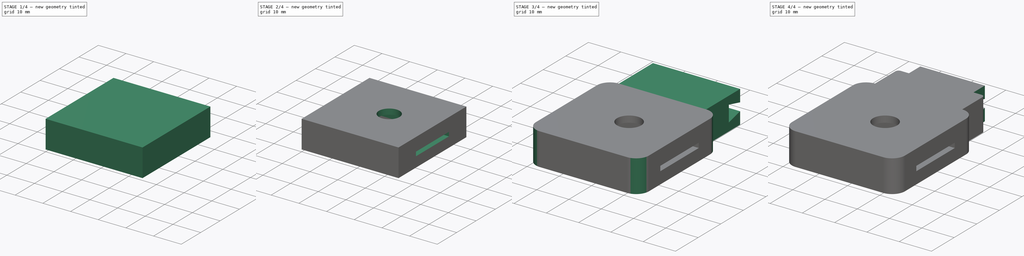
[diagram: build sequence overview — one tinted view per stage of 4, left to right]
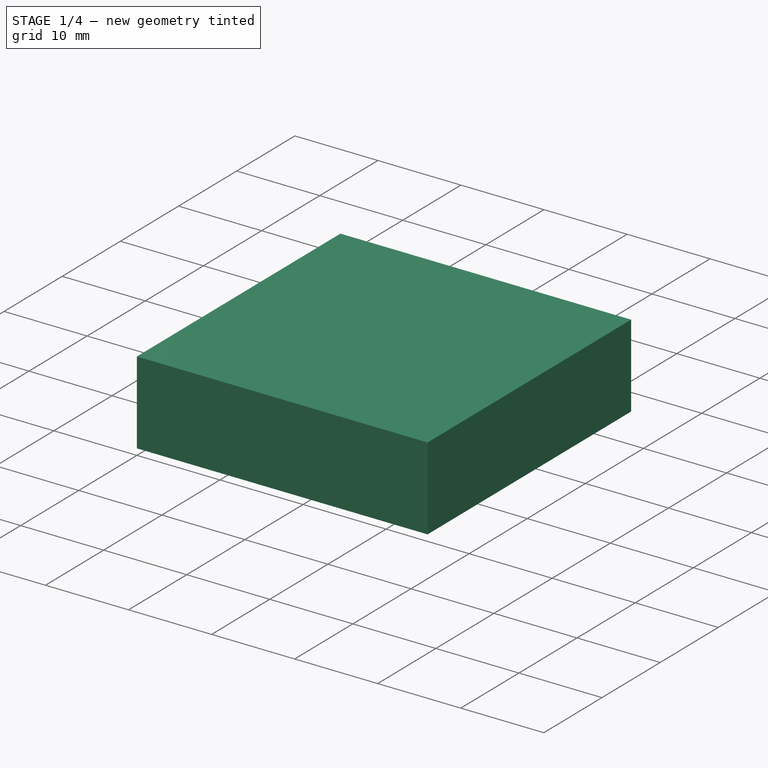
[diagram: stage 1 of 4 — iso view after this stage's code; geometry added in this stage tinted green]
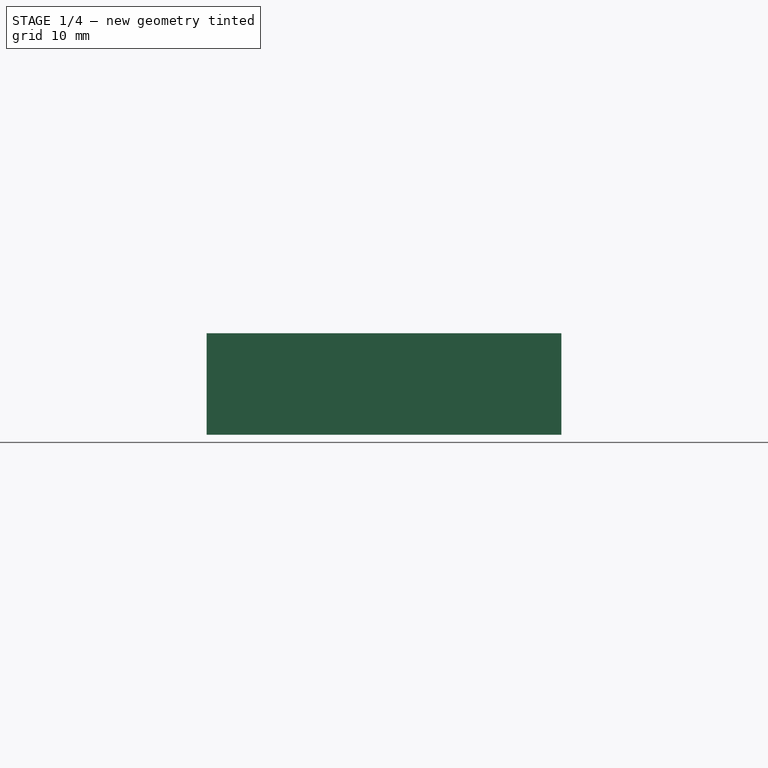
[diagram: stage 1 of 4 — front view after this stage's code; geometry added in this stage tinted green]
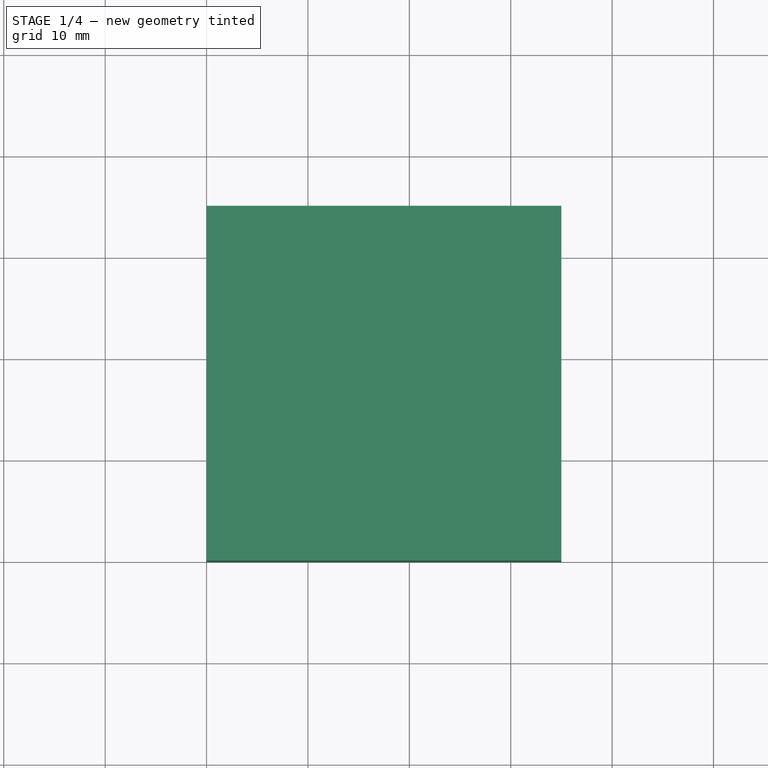
[diagram: stage 1 of 4 — top view after this stage's code; geometry added in this stage tinted green]
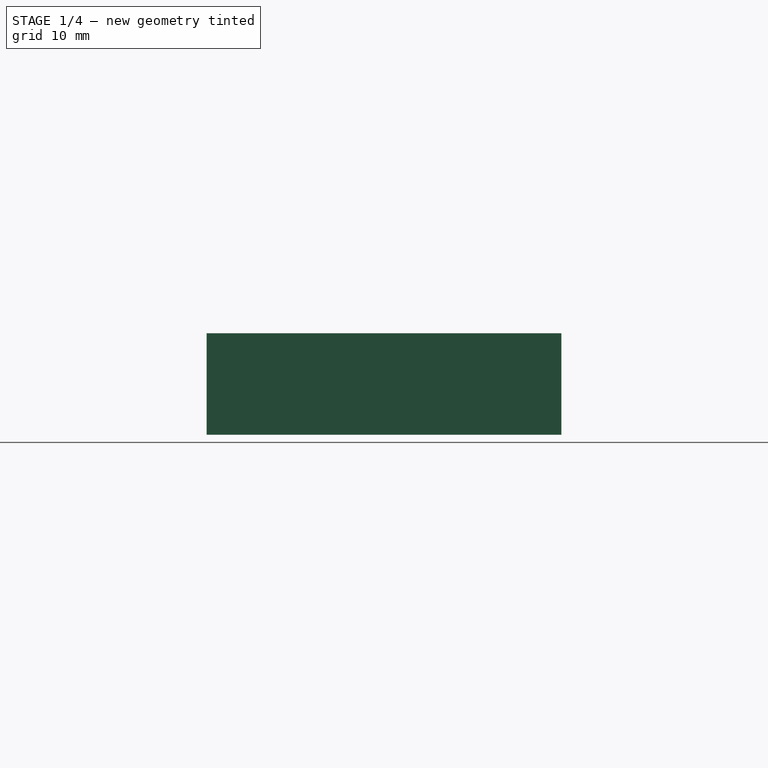
[diagram: stage 1 of 4 — right view after this stage's code; geometry added in this stage tinted green]
FCSTD DOCUMENT  (FreeCAD 0.17R13541 (Git))
Label: RPiCamera_A
License: Other
LicenseURL: https://www.gnu.org/licenses/gpl-2.0.html
objects: Sketcher::SketchObject×7, PartDesign::Pocket×6, PartDesign::Pad×3, PartDesign::Fillet×2, Part::Box×1, PartDesign::FeatureBase×1, PartDesign::Body×1
note: 30 computed .brp shape members not serialized (recipe doc carries the construction recipe); baked Part::Feature solids carry a one-line shape summary decoded from their .brp

FEATURE [Part::Box] Box  label="Cube"
  AttacherType = Attacher::AttachEngine3D
  Height = 10
  Length = 35
  Width = 35
FEATURE [PartDesign::FeatureBase] BaseFeature
  BaseFeature = -> Box
FEATURE [Sketcher::SketchObject] Sketch
  ExternalGeometry = -> [BaseFeature]
  MapMode = 5
  Placement = pos=(0,0,0) rot=(1,0,0;3.14159rad)
  Support = -> [BaseFeature]
  sketch-geometry (8):
    g0: LineSegment StartX=5.25 StartY=-4.75 StartZ=0 EndX=29.75 EndY=-4.75 EndZ=0
    g1: LineSegment StartX=29.75 StartY=-4.75 StartZ=0 EndX=29.75 EndY=-30.25 EndZ=0
    g2: LineSegment StartX=29.75 StartY=-30.25 StartZ=0 EndX=5.25 EndY=-30.25 EndZ=0
    g3: LineSegment StartX=5.25 StartY=-30.25 StartZ=0 EndX=5.25 EndY=-4.75 EndZ=0
    g4: GeomPoint X=17.5 Y=-4.75 Z=0
    g5: GeomPoint X=5.25 Y=-17.5 Z=0
    g6: GeomPoint X=17.5 Y=0 Z=0
    g7: GeomPoint X=0 Y=-17.5 Z=0
  constraints (20):
    c: Coincident(g0,g1)
    c: Coincident(g1,g2)
    c: Coincident(g2,g3)
    c: Coincident(g3,g0)
    c: Horizontal(g0)
    c: Horizontal(g2)
    c: Vertical(g1)
    c: Vertical(g3)
    c: DistanceY(g1,g1) = 25.5
    c: DistanceX(g0,g0) = 24.5
    c: PointOnObject(g4,g0)
    c: PointOnObject(g5,g3)
    c: Symmetric(g0,g0,g4)
    c: Symmetric(g0,g2,g5)
    c: PointOnObject(g6,g-3)
    c: PointOnObject(g7,g-6)
    c: Symmetric(g-1,g-6,g7)
    c: Symmetric(g-1,g-4,g6)
    c: Vertical(g6,g4)
    c: Horizontal(g7,g5)
FEATURE [PartDesign::Pocket] Pocket
  BaseFeature = -> BaseFeature
  Length = 8
  Length2 = 100
  Profile = -> Sketch
  Type = 0
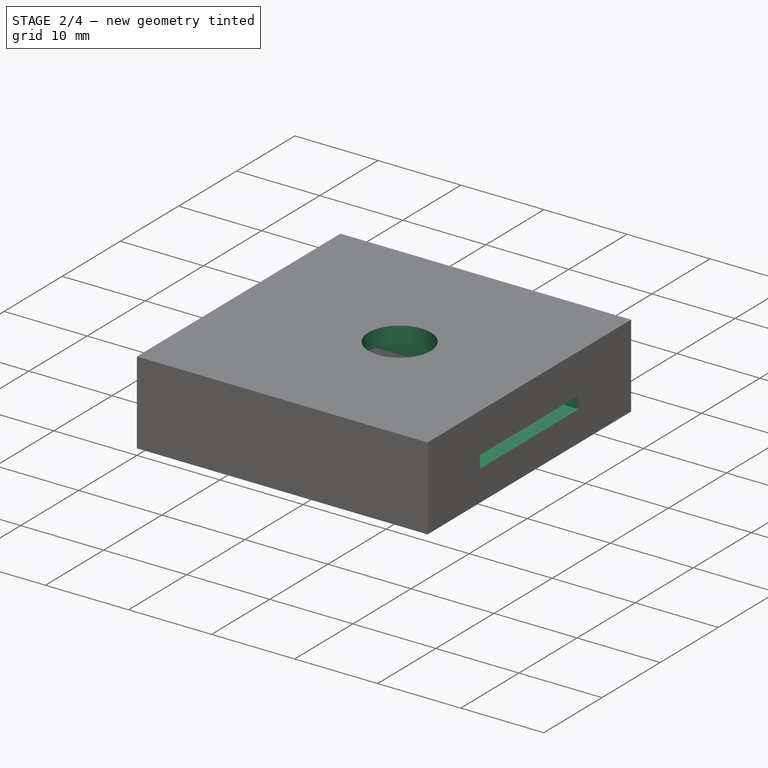
[diagram: stage 2 of 4 — iso view after this stage's code; geometry added in this stage tinted green]
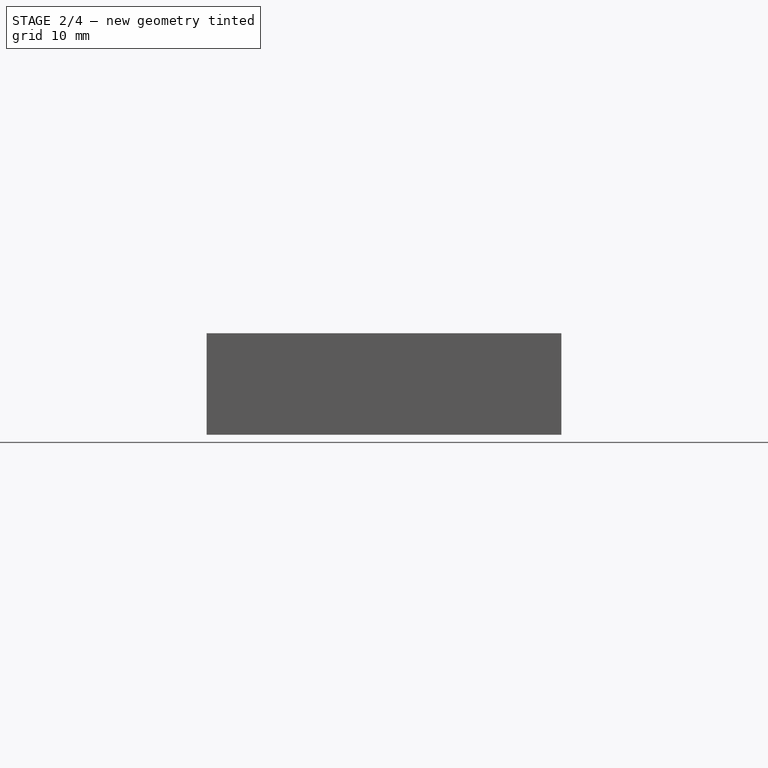
[diagram: stage 2 of 4 — front view after this stage's code; geometry added in this stage tinted green]
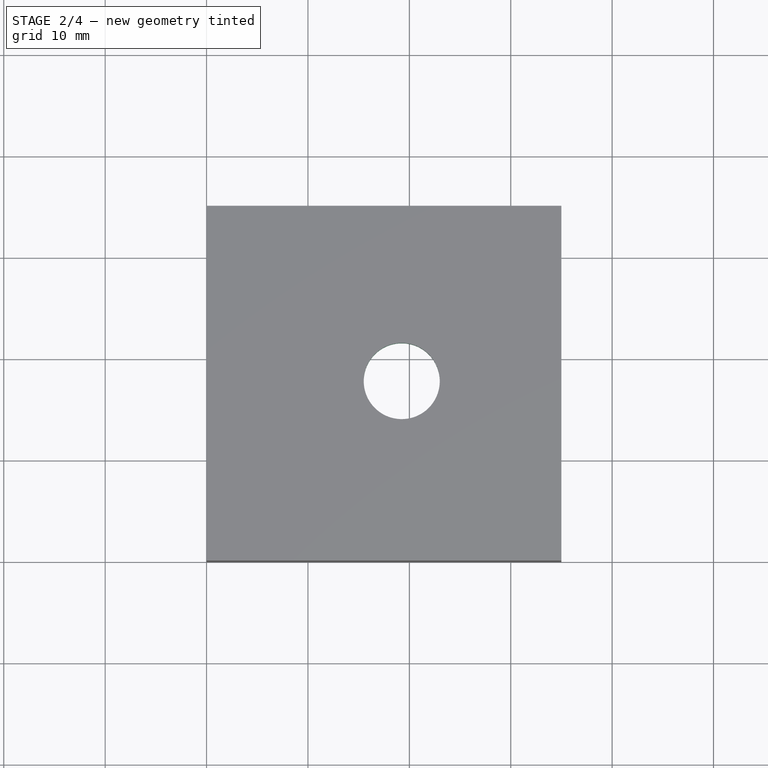
[diagram: stage 2 of 4 — top view after this stage's code; geometry added in this stage tinted green]
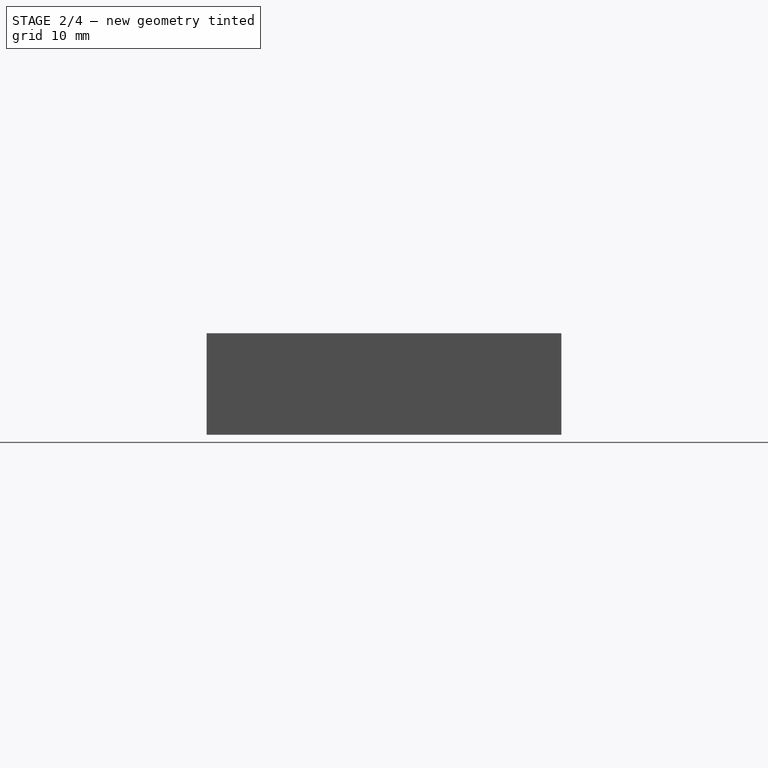
[diagram: stage 2 of 4 — right view after this stage's code; geometry added in this stage tinted green]
FEATURE [Sketcher::SketchObject] Sketch001  label="LensHole"
  ExternalGeometry = -> [Pocket]
  MapMode = 5
  Placement = pos=(0,0,10) rot=(0,0,1;0rad)
  Support = -> [Pocket]
  sketch-geometry (2):
    g0: Circle CenterX=19.25 CenterY=17.7 CenterZ=0 NormalX=0 NormalY=0 NormalZ=1 AngleXU=0 Radius=3.75
    g1: GeomPoint X=0 Y=17.7 Z=0
  constraints (5):
    c: Radius(g0) = 3.75
    c: PointOnObject(g1,g-3)
    c: Horizontal(g1,g0)
    c: DistanceX(g1,g0) = 19.25
    c: DistanceY(g-1,g1) = 17.7
FEATURE [PartDesign::Pocket] Pocket001
  BaseFeature = -> Pocket
  Length = 2
  Length2 = 100
  Profile = -> Sketch001
  Type = 0
FEATURE [Sketcher::SketchObject] Sketch002  label="Center"
  ExternalGeometry = -> [Pocket001]
  MapMode = 5
  Placement = pos=(0,0,8) rot=(1,0,0;3.14159rad)
  Support = -> [Pocket001]
  sketch-geometry (8):
    g0: LineSegment StartX=12.75 StartY=-30.25 StartZ=0 EndX=29.75 EndY=-30.25 EndZ=0
    g1: LineSegment StartX=29.75 StartY=-30.25 StartZ=0 EndX=29.75 EndY=-4.75 EndZ=0
    g2: LineSegment StartX=29.75 StartY=-4.75 StartZ=0 EndX=5.25 EndY=-4.75 EndZ=0
    g3: LineSegment StartX=12.75 StartY=-22.25 StartZ=0 EndX=23.75 EndY=-22.25 EndZ=0
    g4: LineSegment StartX=23.75 StartY=-22.25 StartZ=0 EndX=23.75 EndY=-12.75 EndZ=0
    g5: LineSegment StartX=23.75 StartY=-12.75 StartZ=0 EndX=5.25 EndY=-12.75 EndZ=0
    g6: LineSegment StartX=5.25 StartY=-12.75 StartZ=0 EndX=5.25 EndY=-4.75 EndZ=0
    g7: LineSegment StartX=12.75 StartY=-30.25 StartZ=0 EndX=12.75 EndY=-22.25 EndZ=0
  constraints (23):
    c: Coincident(g0,g1)
    c: Coincident(g1,g2)
    c: Horizontal(g0)
    c: Horizontal(g2)
    c: Vertical(g1)
    c: Coincident(g1,g-6)
    c: Coincident(g3,g4)
    c: Coincident(g4,g5)
    c: Horizontal(g3)
    c: Horizontal(g5)
    c: Vertical(g4)
    c: DistanceX(g5,g5) = 18.5
    c: DistanceY(g4,g4) = 9.5
    c: Coincident(g6,g5)
    c: Coincident(g6,g2)
    c: Coincident(g7,g0)
    c: Coincident(g7,g3)
    c: DistanceY(g6,g6) = 8
    c: Vertical(g6)
    c: Vertical(g7)
    c: PointOnObject(g0,g-4)
    c: PointOnObject(g5,g-3)
    c: DistanceX(g0,g0) = 17
FEATURE [PartDesign::Pad] Pad
  BaseFeature = -> Pocket001
  Length = 2
  Length2 = 100
  Profile = -> Sketch002
  Type = 0
FEATURE [Sketcher::SketchObject] Sketch003  label="CableHole"
  ExternalGeometry = -> [Pad]
  MapMode = 5
  Placement = pos=(29.75,0,0) rot=(0.57735,-0.57735,-0.57735;2.0944rad)
  Support = -> [Pad]
  sketch-geometry (6):
    g0: GeomPoint X=-17.5 Y=6 Z=0
    g1: LineSegment StartX=-26 StartY=5.2 StartZ=0 EndX=-9 EndY=5.2 EndZ=0
    g2: LineSegment StartX=-9 StartY=5.2 StartZ=0 EndX=-9 EndY=3.7 EndZ=0
    g3: LineSegment StartX=-9 StartY=3.7 StartZ=0 EndX=-26 EndY=3.7 EndZ=0
    g4: LineSegment StartX=-26 StartY=3.7 StartZ=0 EndX=-26 EndY=5.2 EndZ=0
    g5: GeomPoint X=-17.5 Y=5.2 Z=0
  constraints (16):
    c: PointOnObject(g0,g-3)
    c: Symmetric(g-5,g-6,g0)
    c: Coincident(g1,g2)
    c: Coincident(g2,g3)
    c: Coincident(g3,g4)
    c: Coincident(g4,g1)
    c: Horizontal(g1)
    c: Horizontal(g3)
    c: Vertical(g2)
    c: Vertical(g4)
    c: PointOnObject(g5,g1)
    c: Symmetric(g1,g1,g5)
    c: DistanceX(g3,g3) = 17
    c: DistanceY(g5,g0) = 0.8
    c: DistanceY(g4,g4) = 1.5
    c: Vertical(g5,g0)
FEATURE [PartDesign::Pocket] Pocket002
  BaseFeature = -> Pad
  Length = 5
  Length2 = 100
  Profile = -> Sketch003
  Type = 1
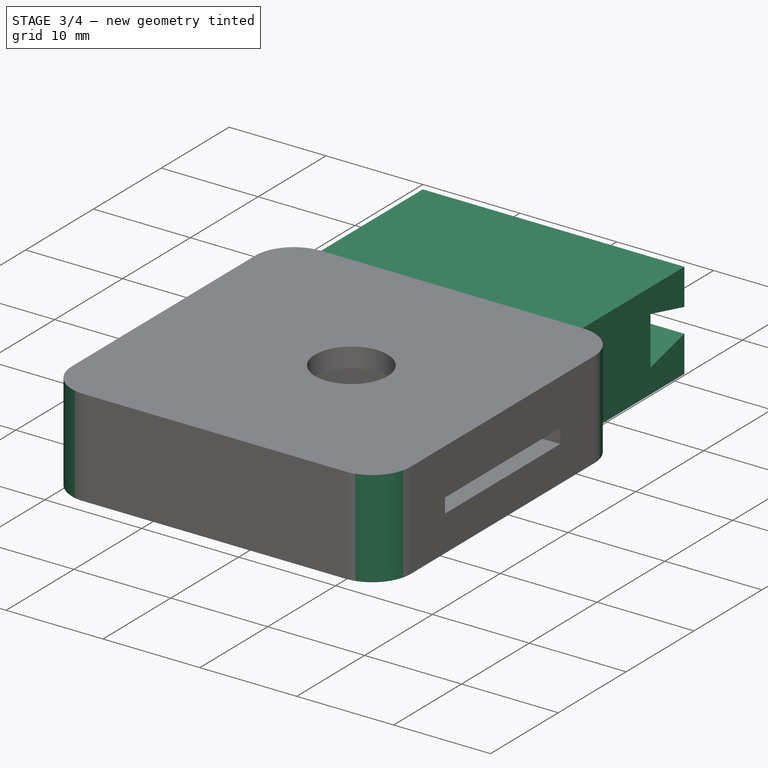
[diagram: stage 3 of 4 — iso view after this stage's code; geometry added in this stage tinted green]
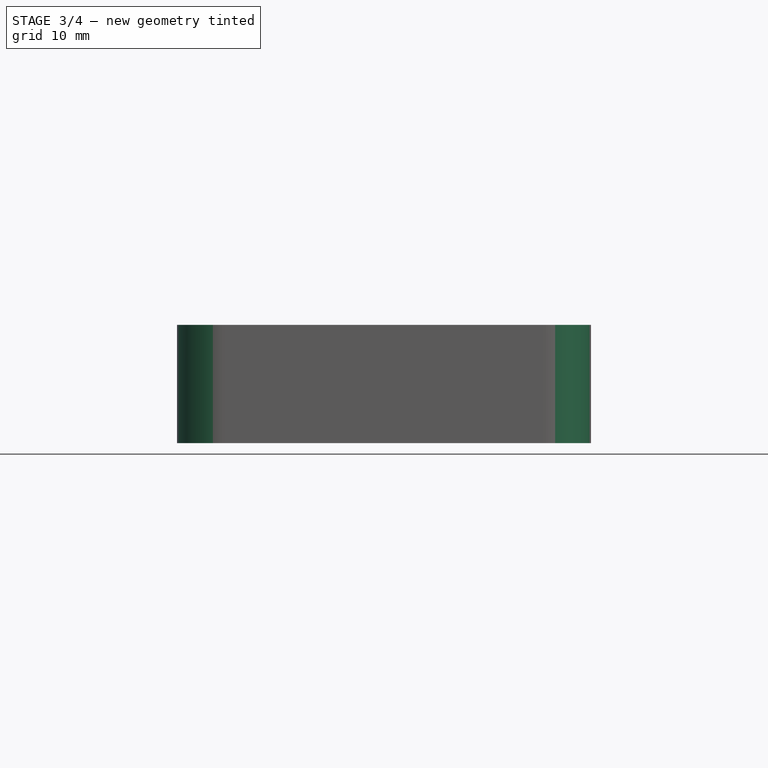
[diagram: stage 3 of 4 — front view after this stage's code; geometry added in this stage tinted green]
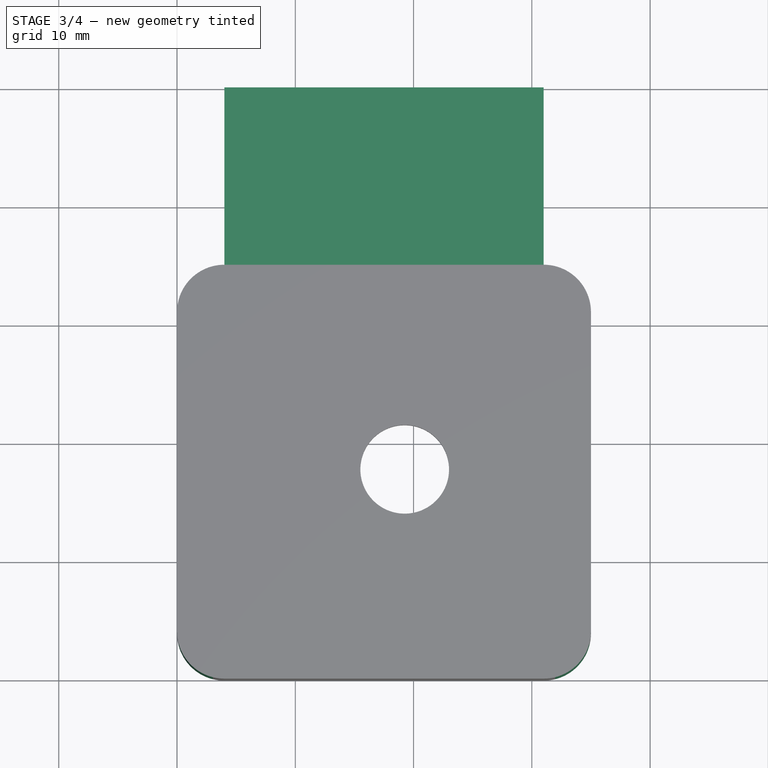
[diagram: stage 3 of 4 — top view after this stage's code; geometry added in this stage tinted green]
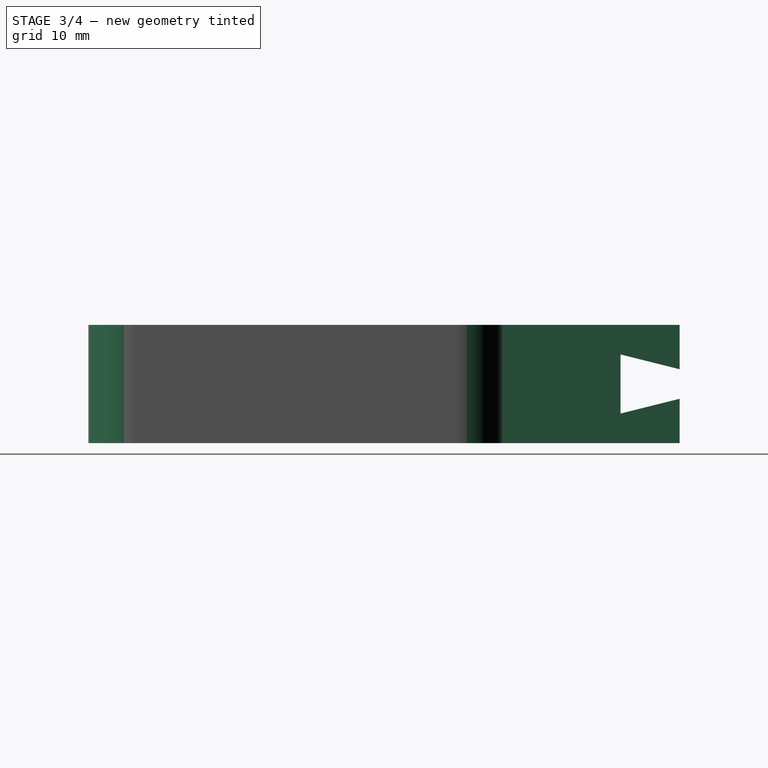
[diagram: stage 3 of 4 — right view after this stage's code; geometry added in this stage tinted green]
FEATURE [PartDesign::Fillet] Fillet
  Base = -> Pocket002 [Edge1,Edge6,Edge3,Edge12]
  BaseFeature = -> Pocket002
  Radius = 4
FEATURE [PartDesign::Pad] Pad001
  BaseFeature = -> Fillet
  Length = 10
  Length2 = 100
  Profile = -> Fillet [Face7]
  Type = 0
FEATURE [PartDesign::Pad] Pad002
  BaseFeature = -> Pad001
  Length = 5
  Length2 = 100
  Profile = -> Pad001 [Face19]
  Type = 0
FEATURE [Sketcher::SketchObject] Sketch004
  ExternalGeometry = -> [Pad002]
  MapMode = 5
  Placement = pos=(31,0,0) rot=(0.57735,0.57735,0.57735;2.0944rad)
  Support = -> [Pad002]
  sketch-geometry (6):
    g0: GeomPoint X=45 Y=5 Z=0
    g1: GeomPoint X=50 Y=5 Z=0
    g2: LineSegment StartX=45 StartY=2.5 StartZ=0 EndX=45 EndY=7.5 EndZ=0
    g3: LineSegment StartX=45 StartY=7.5 StartZ=0 EndX=50 EndY=6.25 EndZ=0
    g4: LineSegment StartX=50 StartY=6.25 StartZ=0 EndX=50 EndY=3.75 EndZ=0
    g5: LineSegment StartX=50 StartY=3.75 StartZ=0 EndX=45 EndY=2.5 EndZ=0
  constraints (13):
    c: PointOnObject(g1,g-4)
    c: Symmetric(g-6,g-6,g0)
    c: Symmetric(g-4,g-5,g1)
    c: Vertical(g2)
    c: Coincident(g2,g3)
    c: Coincident(g3,g4)
    c: Coincident(g4,g5)
    c: Coincident(g5,g2)
    c: DistanceY(g2,g2) = 5
    c: Vertical(g4)
    c: DistanceY(g4,g4) = 2.5
    c: Symmetric(g3,g4,g1)
    c: Symmetric(g2,g2,g0)
FEATURE [PartDesign::Pocket] Pocket003
  BaseFeature = -> Pad002
  Length = 5
  Length2 = 100
  Profile = -> Sketch004
  Type = 1
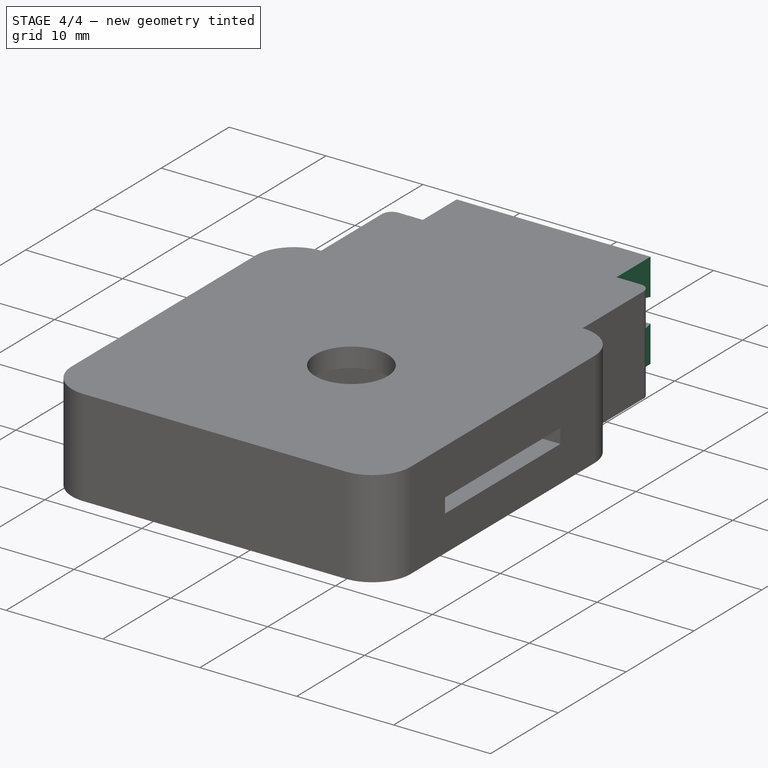
[diagram: stage 4 of 4 — iso view after this stage's code; geometry added in this stage tinted green]
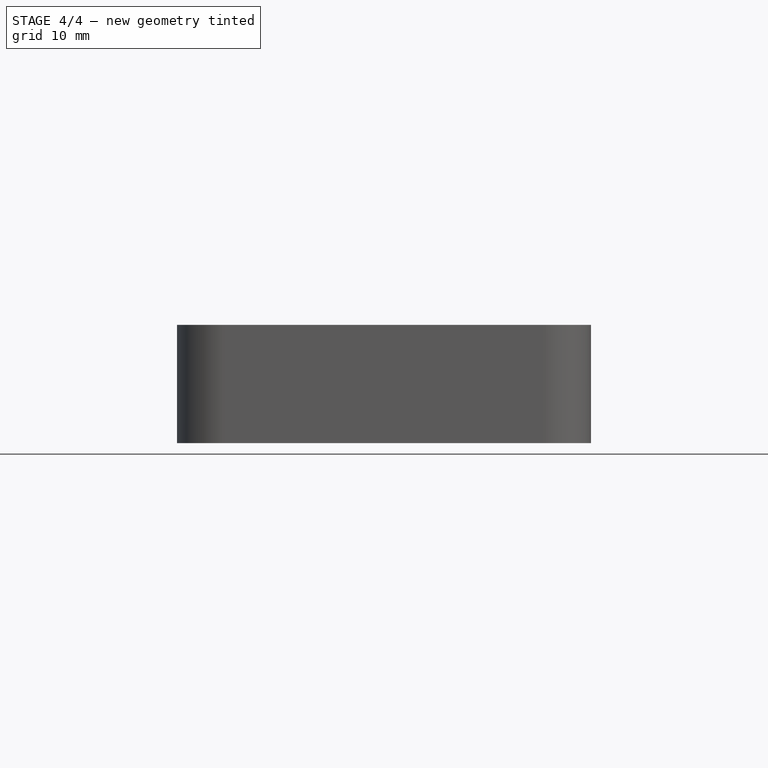
[diagram: stage 4 of 4 — front view after this stage's code; geometry added in this stage tinted green]
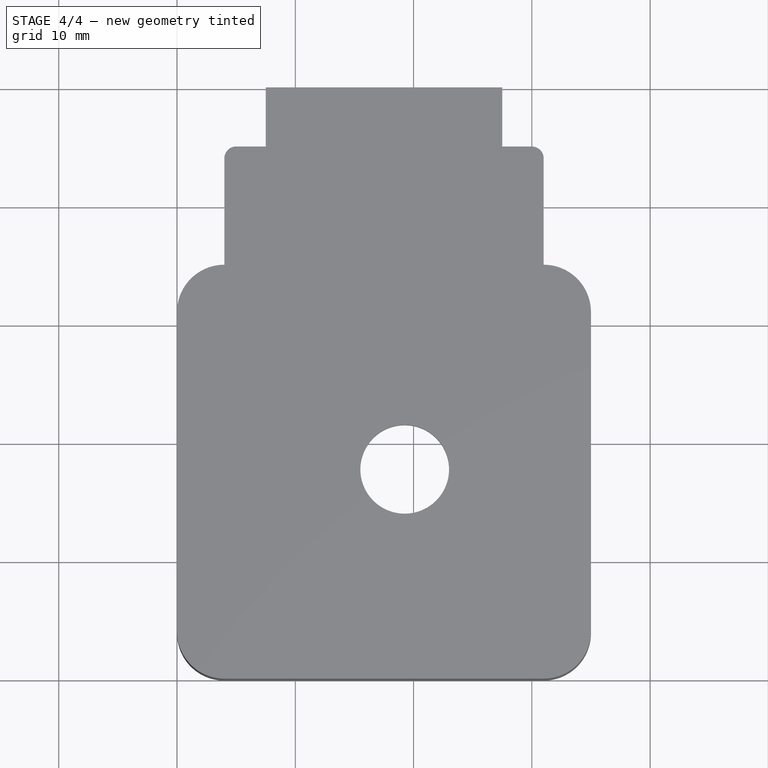
[diagram: stage 4 of 4 — top view after this stage's code; geometry added in this stage tinted green]
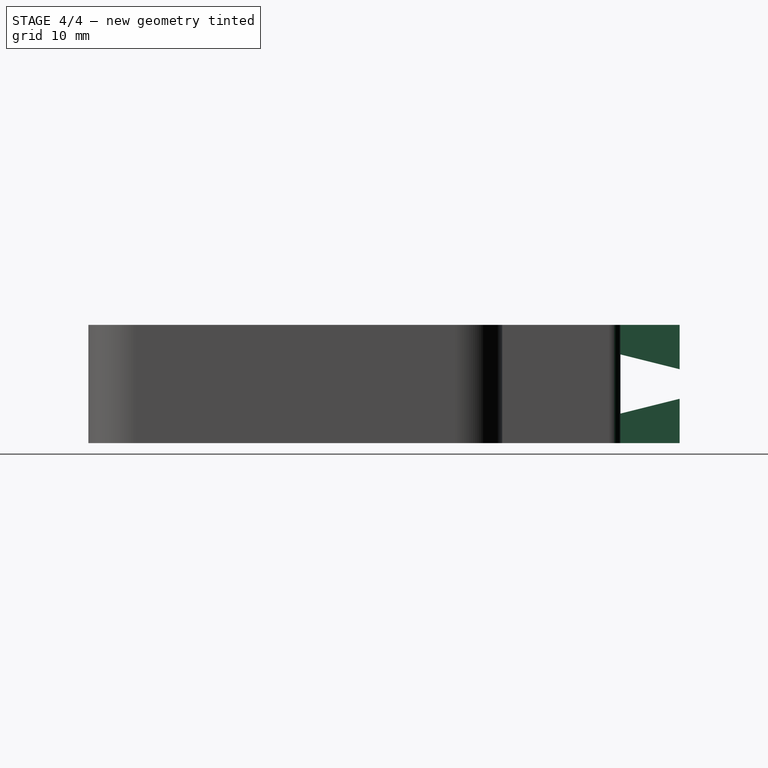
[diagram: stage 4 of 4 — right view after this stage's code; geometry added in this stage tinted green]
FEATURE [Sketcher::SketchObject] Sketch005
  ExternalGeometry = -> [Pocket003]
  MapMode = 5
  Placement = pos=(31,0,0) rot=(0.57735,0.57735,0.57735;2.0944rad)
  Support = -> [Pocket003]
  sketch-geometry (8):
    g0: LineSegment StartX=45 StartY=0 StartZ=0 EndX=45 EndY=2.5 EndZ=0
    g1: LineSegment StartX=45 StartY=2.5 StartZ=0 EndX=50 EndY=3.75 EndZ=0
    g2: LineSegment StartX=50 StartY=3.75 StartZ=0 EndX=50 EndY=0 EndZ=0
    g3: LineSegment StartX=50 StartY=0 StartZ=0 EndX=45 EndY=0 EndZ=0
    g4: LineSegment StartX=45 StartY=7.5 StartZ=0 EndX=45 EndY=10 EndZ=0
    g5: LineSegment StartX=45 StartY=10 StartZ=0 EndX=50 EndY=10 EndZ=0
    g6: LineSegment StartX=50 StartY=10 StartZ=0 EndX=50 EndY=6.25 EndZ=0
    g7: LineSegment StartX=50 StartY=6.25 StartZ=0 EndX=45 EndY=7.5 EndZ=0
  constraints (17):
    c: Coincident(g-3,g0)
    c: Coincident(g0,g-3)
    c: Coincident(g0,g1)
    c: Coincident(g1,g-4)
    c: Coincident(g1,g2)
    c: Coincident(g2,g-4)
    c: Coincident(g2,g3)
    c: Coincident(g3,g0)
    c: Coincident(g-5,g4)
    c: Vertical(g4)
    c: Coincident(g4,g5)
    c: Coincident(g5,g-6)
    c: Horizontal(g5)
    c: Coincident(g5,g6)
    c: Coincident(g6,g-6)
    c: Coincident(g6,g7)
    c: Coincident(g7,g4)
FEATURE [PartDesign::Pocket] Pocket004
  BaseFeature = -> Pocket003
  Length = 3.5
  Length2 = 100
  Profile = -> Sketch005
  Type = 0
FEATURE [Sketcher::SketchObject] Sketch006
  ExternalGeometry = -> [Pocket004]
  MapMode = 5
  Placement = pos=(4,0,0) rot=(0.57735,-0.57735,-0.57735;2.0944rad)
  Support = -> [Pocket004]
  sketch-geometry (8):
    g0: LineSegment StartX=-45 StartY=10 StartZ=0 EndX=-45 EndY=7.5 EndZ=0
    g1: LineSegment StartX=-45 StartY=7.5 StartZ=0 EndX=-50 EndY=6.25 EndZ=0
    g2: LineSegment StartX=-50 StartY=6.25 StartZ=0 EndX=-50 EndY=10 EndZ=0
    g3: LineSegment StartX=-50 StartY=10 StartZ=0 EndX=-45 EndY=10 EndZ=0
    g4: LineSegment StartX=-50 StartY=3.75 StartZ=0 EndX=-50 EndY=0 EndZ=0
    g5: LineSegment StartX=-50 StartY=0 StartZ=0 EndX=-45 EndY=0 EndZ=0
    g6: LineSegment StartX=-45 StartY=0 StartZ=0 EndX=-45 EndY=2.5 EndZ=0
    g7: LineSegment StartX=-45 StartY=2.5 StartZ=0 EndX=-50 EndY=3.75 EndZ=0
  constraints (16):
    c: Coincident(g-3,g0)
    c: Coincident(g0,g-3)
    c: Coincident(g0,g1)
    c: Coincident(g1,g-4)
    c: Coincident(g1,g2)
    c: Coincident(g2,g-4)
    c: Coincident(g2,g3)
    c: Coincident(g3,g0)
    c: Coincident(g-6,g4)
    c: Coincident(g4,g-6)
    c: Coincident(g4,g5)
    c: Coincident(g5,g-5)
    c: Coincident(g5,g6)
    c: Coincident(g6,g-5)
    c: Coincident(g6,g7)
    c: Coincident(g7,g4)
FEATURE [PartDesign::Pocket] Pocket005
  BaseFeature = -> Pocket004
  Length = 3.5
  Length2 = 100
  Profile = -> Sketch006
  Type = 0
FEATURE [PartDesign::Fillet] Fillet001
  Base = -> Pocket005 [Edge43,Edge42,Edge44,Edge65,Edge66,Edge67]
  BaseFeature = -> Pocket005
  Radius = 1
FEATURE [PartDesign::Body] Body
  BaseFeature = -> Box
  Group = -> [BaseFeature,Sketch,Pocket,Sketch001,Pocket001,Sketch002,Pad,Sketch003,Pocket002,Fillet,Pad001,Pad002,Sketch004,Pocket003,Sketch005,Pocket004,Sketch006,Pocket005,Fillet001]
  Origin = -> Origin
  Tip = -> Fillet001
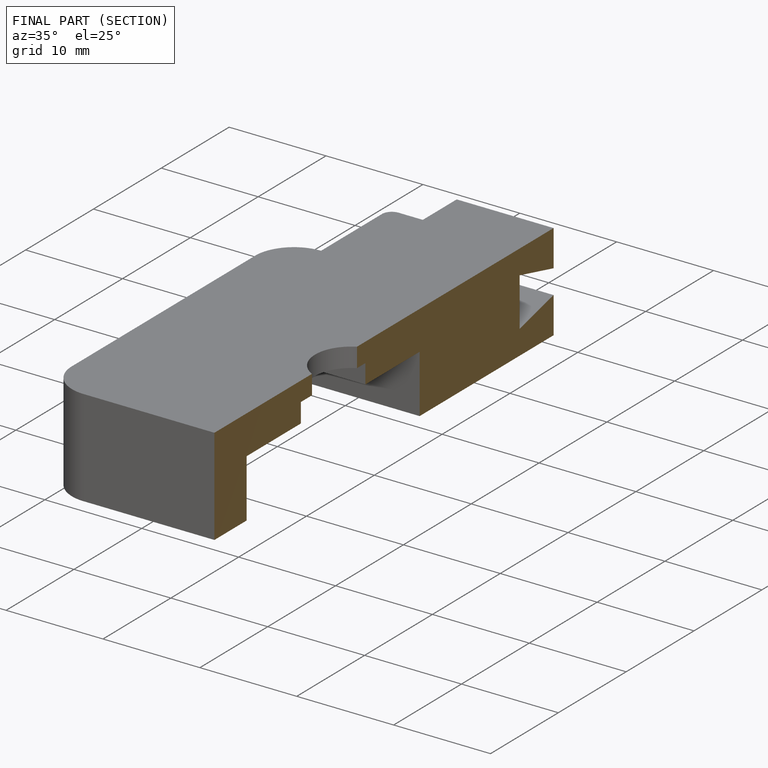
[diagram: finished part — half-section view (interior)]
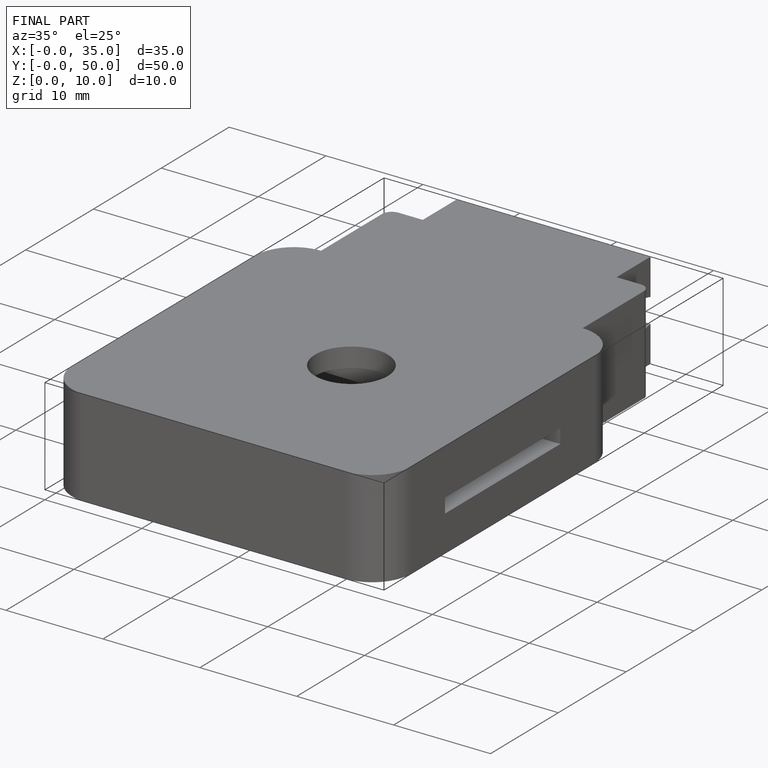
[diagram: finished part — iso view with bounding-box wireframe]
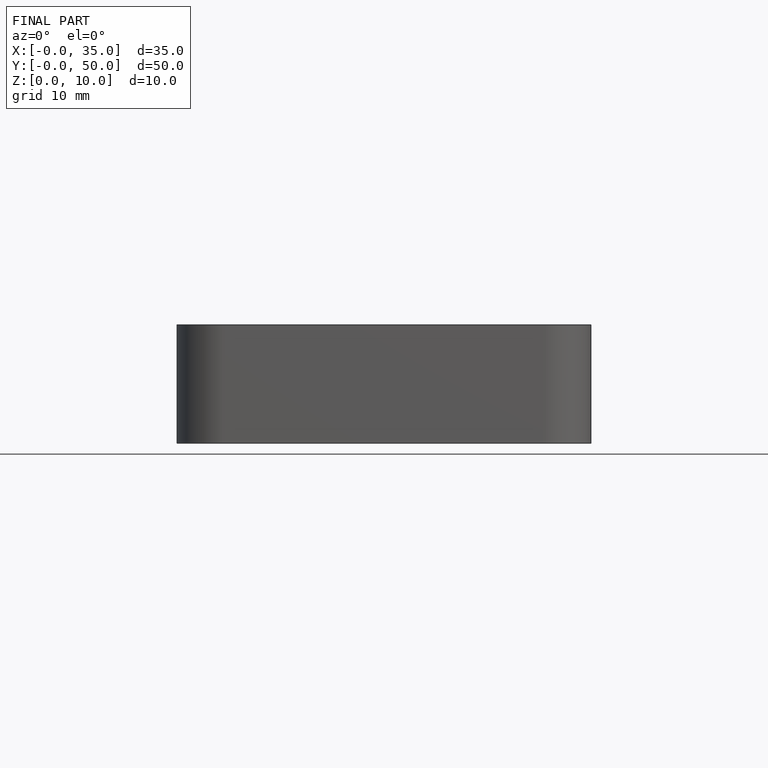
[diagram: finished part — front view with bounding-box wireframe]
